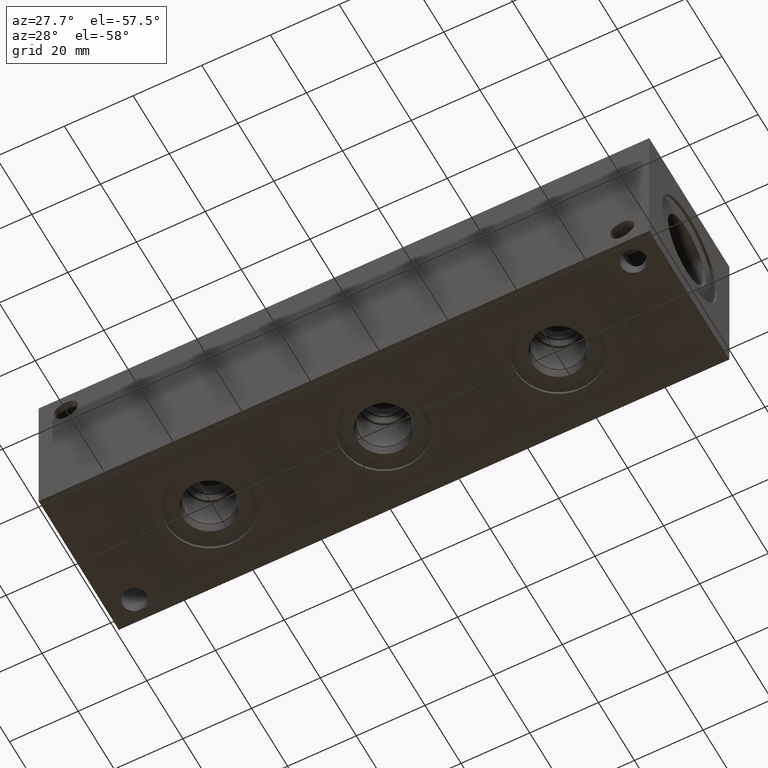
[diagram: clean part render]
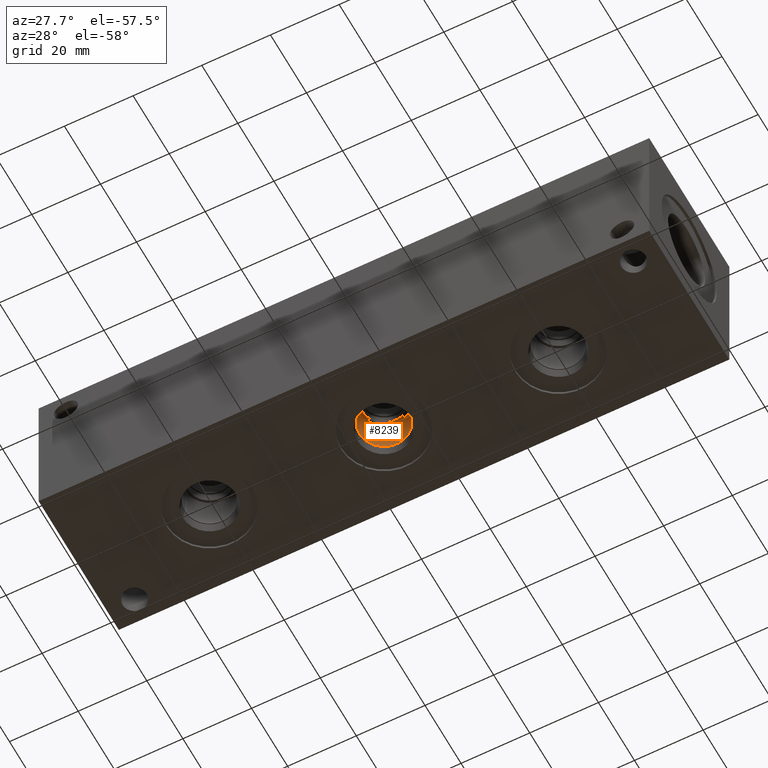
[diagram: same view with one face highlighted and labeled with its STEP entity id]
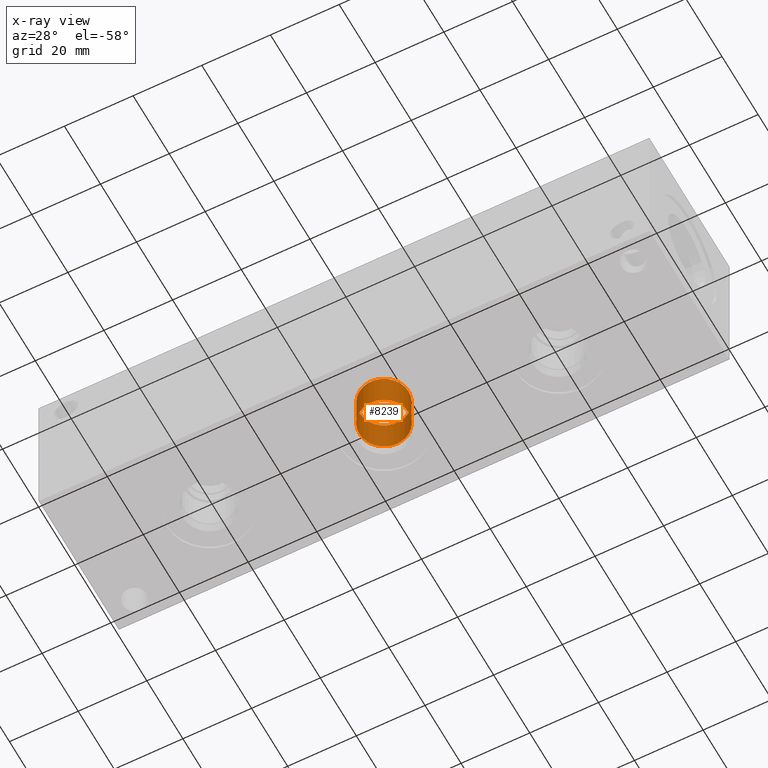
[diagram: x-ray of the same camera — body ghosted, the highlighted face saturated]
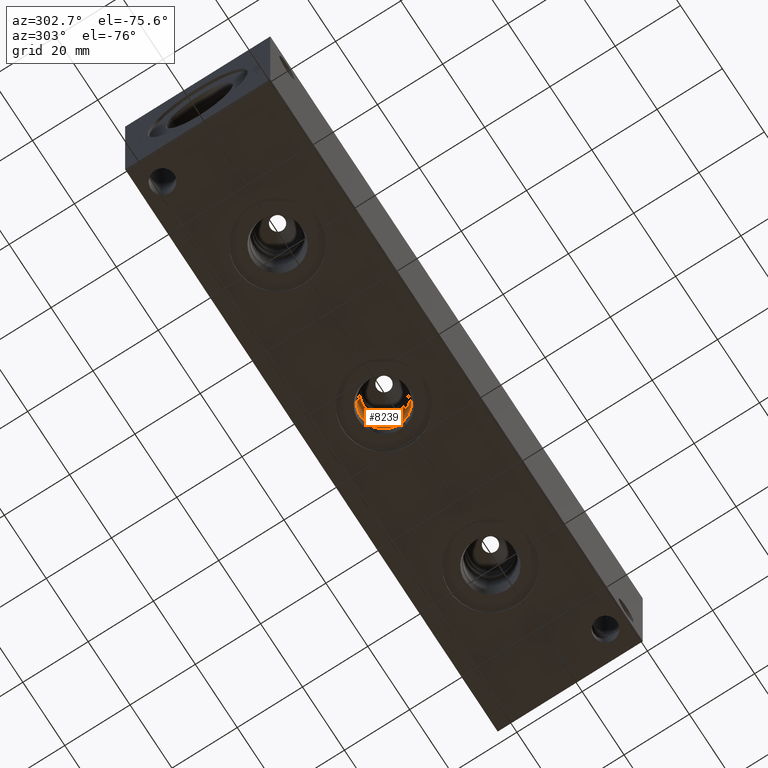
[diagram: same view with one face highlighted and labeled with its STEP entity id]
A machine part, auxiliary view. The second image highlights one B-rep face of the part: STEP entity #8239.
The next image is the same camera in x-ray: the body ghosted, the highlighted face saturated — about 0% of this face is hidden behind the body in this view.
A second angle (auxiliary view) of the same face is appended — the face is thin or edge-on in the first view.
In plain terms, the highlighted cylindrical surface (bore or boss wall) has radius 7.1374 mm, axis along (0, 0, -1).
Its self-contained STEP definition (entity closure, byte-faithful):
#61=CYLINDRICAL_SURFACE('',#8611,7.1374);
#133=CIRCLE('',#8585,7.1374);
#148=CIRCLE('',#8608,7.1374);
#149=CIRCLE('',#8609,7.1374);
#903=FACE_OUTER_BOUND('',#1366,.T.);
#1366=EDGE_LOOP('',(#7026,#7027,#7028,#7029,#7030));
#2148=LINE('',#14029,#2895);
#2895=VECTOR('',#10049,7.1374);
#3833=VERTEX_POINT('',#13976);
#3848=VERTEX_POINT('',#14022);
#3849=VERTEX_POINT('',#14023);
#4915=EDGE_CURVE('',#3833,#3833,#133,.T.);
#4937=EDGE_CURVE('',#3848,#3849,#148,.T.);
#4938=EDGE_CURVE('',#3849,#3848,#149,.T.);
#4940=EDGE_CURVE('',#3833,#3849,#2148,.T.);
#7026=ORIENTED_EDGE('',*,*,#4915,.T.);
#7027=ORIENTED_EDGE('',*,*,#4940,.T.);
#7028=ORIENTED_EDGE('',*,*,#4937,.F.);
#7029=ORIENTED_EDGE('',*,*,#4938,.F.);
#7030=ORIENTED_EDGE('',*,*,#4940,.F.);
#8239=ADVANCED_FACE('',(#903),#61,.F.);
#8585=AXIS2_PLACEMENT_3D('',#13978,#9988,#9989);
#8608=AXIS2_PLACEMENT_3D('',#14024,#10041,#10042);
#8609=AXIS2_PLACEMENT_3D('',#14025,#10043,#10044);
#8611=AXIS2_PLACEMENT_3D('',#14028,#10047,#10048);
#9988=DIRECTION('center_axis',(0.,0.,-1.));
#9989=DIRECTION('ref_axis',(1.,0.,0.));
#10041=DIRECTION('center_axis',(0.,0.,-1.));
#10042=DIRECTION('ref_axis',(1.,0.,0.));
#10043=DIRECTION('center_axis',(0.,0.,-1.));
#10044=DIRECTION('ref_axis',(1.,0.,0.));
#10047=DIRECTION('center_axis',(0.,0.,-1.));
#10048=DIRECTION('ref_axis',(1.,0.,0.));
#10049=DIRECTION('',(0.,0.,1.));
#13976=CARTESIAN_POINT('',(81.7626,22.225,3.429));
#13978=CARTESIAN_POINT('Origin',(88.9,22.225,3.429));
#14022=CARTESIAN_POINT('',(96.0374,22.225,13.4874));
#14023=CARTESIAN_POINT('',(81.7626,22.225,13.4874));
#14024=CARTESIAN_POINT('Origin',(88.9,22.225,13.4874));
#14025=CARTESIAN_POINT('Origin',(88.9,22.225,13.4874));
#14028=CARTESIAN_POINT('Origin',(88.9,22.225,6.7437));
#14029=CARTESIAN_POINT('',(81.7626,22.225,6.7437));